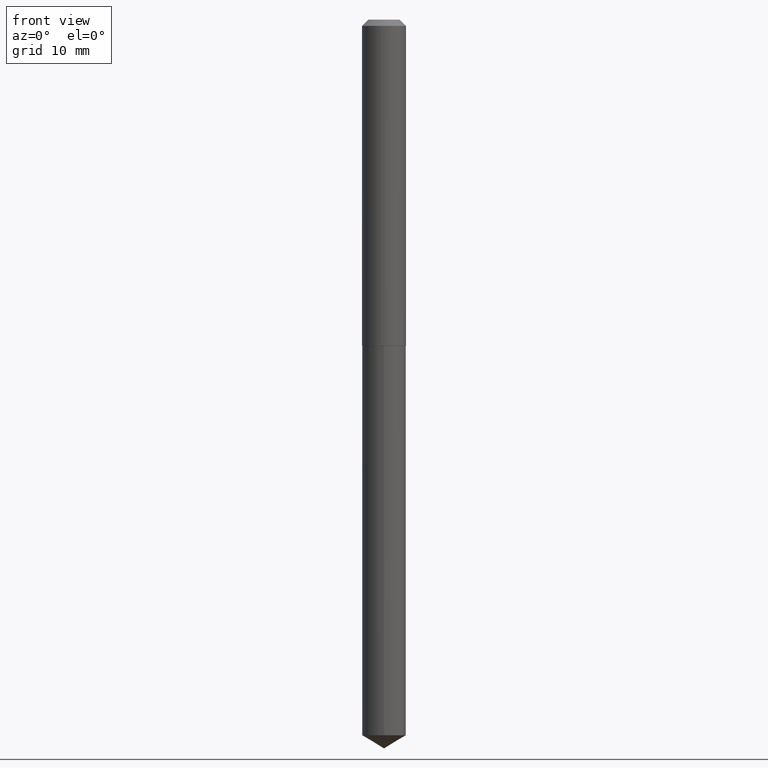
[diagram: clean part render]
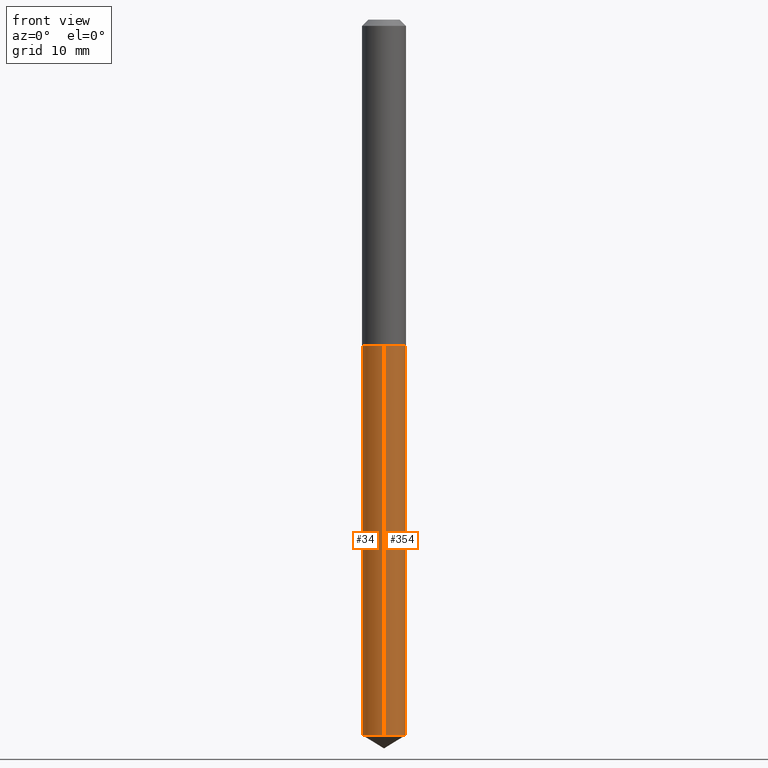
[diagram: same view with one multi-face feature highlighted, each face labeled with its STEP entity id]
A machine part, front view. The highlighted faces form ONE feature: a constant-radius fillet chain: 2 tangent blend faces with common blend radius 2.8003 mm. The faces share edges in the B-rep.
Their STEP definitions:
[1] entity #34 (Cylinder):
#13 = VERTEX_POINT ( 'NONE', #370 ) ;
#26 = EDGE_CURVE ( 'NONE', #13, #309, #104, .T. ) ;
#34 = ADVANCED_FACE ( 'NONE', ( #135 ), #237, .T. ) ;
#46 = AXIS2_PLACEMENT_3D ( 'NONE', #279, #364, #180 ) ;
#61 = CARTESIAN_POINT ( 'NONE',  ( 7.833733661755984184E-16, 0.1102499999999942693, -1.637800000000000145 ) ) ;
#63 = CARTESIAN_POINT ( 'NONE',  ( 7.833733661755981226E-16, 0.1102499999999874275, -3.595155116752211555 ) ) ;
#91 = DIRECTION ( 'NONE',  ( -2.445447831690350451E-29, 3.491511375513473073E-15, 1.000000000000000000 ) ) ;
#97 = DIRECTION ( 'NONE',  ( -6.982962677686266711E-15, -1.000000000000000000, 4.955733321839933614E-15 ) ) ;
#103 = CARTESIAN_POINT ( 'NONE',  ( 4.005188810770016634E-29, -5.718348136757303493E-15, -1.637799999999999923 ) ) ;
#104 = LINE ( 'NONE', #268, #221 ) ;
#133 = ORIENTED_EDGE ( 'NONE', *, *, #26, .T. ) ;
#135 = FACE_OUTER_BOUND ( 'NONE', #365, .T. ) ;
#156 = ORIENTED_EDGE ( 'NONE', *, *, #379, .F. ) ;
#162 = DIRECTION ( 'NONE',  ( -2.445447831690350451E-29, 3.491511375513473467E-15, 1.000000000000000000 ) ) ;
#180 = DIRECTION ( 'NONE',  ( -6.982962677686266711E-15, -1.000000000000000000, 2.477866660919966807E-15 ) ) ;
#197 = EDGE_CURVE ( 'NONE', #204, #330, #258, .T. ) ;
#204 = VERTEX_POINT ( 'NONE', #63 ) ;
#212 = ORIENTED_EDGE ( 'NONE', *, *, #197, .F. ) ;
#221 = VECTOR ( 'NONE', #91, 39.37007874015748143 ) ;
#229 = CARTESIAN_POINT ( 'NONE',  ( -7.698716352148708465E-16, -0.1102500000000057184, -1.637799999999999701 ) ) ;
#237 = CYLINDRICAL_SURFACE ( 'NONE', #46, 0.1102500000000000008 ) ;
#247 = CIRCLE ( 'NONE', #347, 0.1102500000000000008 ) ;
#253 = DIRECTION ( 'NONE',  ( -2.445447831690350451E-29, 3.491511375513473467E-15, 1.000000000000000000 ) ) ;
#258 = LINE ( 'NONE', #369, #300 ) ;
#261 = AXIS2_PLACEMENT_3D ( 'NONE', #344, #162, #97 ) ;
#268 = CARTESIAN_POINT ( 'NONE',  ( -7.698716352148708465E-16, -0.1102500000000057184, -1.637799999999999701 ) ) ;
#279 = CARTESIAN_POINT ( 'NONE',  ( 4.005188810770016634E-29, -5.718348136757303493E-15, -1.637799999999999923 ) ) ;
#300 = VECTOR ( 'NONE', #338, 39.37007874015748143 ) ;
#309 = VERTEX_POINT ( 'NONE', #229 ) ;
#322 = CIRCLE ( 'NONE', #261, 0.1102500000000000008 ) ;
#330 = VERTEX_POINT ( 'NONE', #61 ) ;
#338 = DIRECTION ( 'NONE',  ( -2.445447831690350451E-29, 3.491511375513473073E-15, 1.000000000000000000 ) ) ;
#339 = DIRECTION ( 'NONE',  ( -6.982962677686266711E-15, -1.000000000000000000, 2.477866660919966807E-15 ) ) ;
#344 = CARTESIAN_POINT ( 'NONE',  ( 8.791798636879723663E-29, -1.255247579281715321E-14, -3.595155116752211111 ) ) ;
#347 = AXIS2_PLACEMENT_3D ( 'NONE', #103, #253, #339 ) ;
#352 = EDGE_CURVE ( 'NONE', #204, #13, #322, .T. ) ;
#359 = ORIENTED_EDGE ( 'NONE', *, *, #352, .T. ) ;
#364 = DIRECTION ( 'NONE',  ( -2.445447831690350451E-29, 3.491511375513473467E-15, 1.000000000000000000 ) ) ;
#365 = EDGE_LOOP ( 'NONE', ( #212, #359, #133, #156 ) ) ;
#369 = CARTESIAN_POINT ( 'NONE',  ( 7.833733661755503965E-16, 0.1102499999999942831, -1.637800000000000145 ) ) ;
#370 = CARTESIAN_POINT ( 'NONE',  ( -7.698716352148227260E-16, -0.1102500000000125324, -3.595155116752210667 ) ) ;
#379 = EDGE_CURVE ( 'NONE', #330, #309, #247, .T. ) ;
[2] entity #354 (Cylinder):
#12 = DIRECTION ( 'NONE',  ( -2.445447831690350451E-29, 3.491511375513473467E-15, 1.000000000000000000 ) ) ;
#13 = VERTEX_POINT ( 'NONE', #370 ) ;
#26 = EDGE_CURVE ( 'NONE', #13, #309, #104, .T. ) ;
#40 = ORIENTED_EDGE ( 'NONE', *, *, #270, .T. ) ;
#51 = EDGE_LOOP ( 'NONE', ( #40, #158, #86, #239 ) ) ;
#61 = CARTESIAN_POINT ( 'NONE',  ( 7.833733661755984184E-16, 0.1102499999999942693, -1.637800000000000145 ) ) ;
#63 = CARTESIAN_POINT ( 'NONE',  ( 7.833733661755981226E-16, 0.1102499999999874275, -3.595155116752211555 ) ) ;
#65 = CIRCLE ( 'NONE', #94, 0.1102500000000000008 ) ;
#76 = DIRECTION ( 'NONE',  ( -2.445447831690350451E-29, 3.491511375513473467E-15, 1.000000000000000000 ) ) ;
#77 = DIRECTION ( 'NONE',  ( -6.982962677686266711E-15, -1.000000000000000000, 4.955733321839933614E-15 ) ) ;
#86 = ORIENTED_EDGE ( 'NONE', *, *, #192, .F. ) ;
#91 = DIRECTION ( 'NONE',  ( -2.445447831690350451E-29, 3.491511375513473073E-15, 1.000000000000000000 ) ) ;
#94 = AXIS2_PLACEMENT_3D ( 'NONE', #388, #285, #250 ) ;
#104 = LINE ( 'NONE', #268, #221 ) ;
#107 = CARTESIAN_POINT ( 'NONE',  ( 4.005188810770016634E-29, -5.718348136757303493E-15, -1.637799999999999923 ) ) ;
#158 = ORIENTED_EDGE ( 'NONE', *, *, #197, .T. ) ;
#169 = CYLINDRICAL_SURFACE ( 'NONE', #342, 0.1102500000000000008 ) ;
#186 = CIRCLE ( 'NONE', #230, 0.1102500000000000008 ) ;
#192 = EDGE_CURVE ( 'NONE', #309, #330, #65, .T. ) ;
#197 = EDGE_CURVE ( 'NONE', #204, #330, #258, .T. ) ;
#198 = FACE_OUTER_BOUND ( 'NONE', #51, .T. ) ;
#204 = VERTEX_POINT ( 'NONE', #63 ) ;
#221 = VECTOR ( 'NONE', #91, 39.37007874015748143 ) ;
#229 = CARTESIAN_POINT ( 'NONE',  ( -7.698716352148708465E-16, -0.1102500000000057184, -1.637799999999999701 ) ) ;
#230 = AXIS2_PLACEMENT_3D ( 'NONE', #349, #76, #77 ) ;
#239 = ORIENTED_EDGE ( 'NONE', *, *, #26, .F. ) ;
#250 = DIRECTION ( 'NONE',  ( -6.982962677686266711E-15, -1.000000000000000000, 2.477866660919966807E-15 ) ) ;
#258 = LINE ( 'NONE', #369, #300 ) ;
#268 = CARTESIAN_POINT ( 'NONE',  ( -7.698716352148708465E-16, -0.1102500000000057184, -1.637799999999999701 ) ) ;
#270 = EDGE_CURVE ( 'NONE', #13, #204, #186, .T. ) ;
#285 = DIRECTION ( 'NONE',  ( -2.445447831690350451E-29, 3.491511375513473467E-15, 1.000000000000000000 ) ) ;
#300 = VECTOR ( 'NONE', #338, 39.37007874015748143 ) ;
#309 = VERTEX_POINT ( 'NONE', #229 ) ;
#311 = DIRECTION ( 'NONE',  ( -6.982962677686266711E-15, -1.000000000000000000, 2.477866660919966807E-15 ) ) ;
#330 = VERTEX_POINT ( 'NONE', #61 ) ;
#338 = DIRECTION ( 'NONE',  ( -2.445447831690350451E-29, 3.491511375513473073E-15, 1.000000000000000000 ) ) ;
#342 = AXIS2_PLACEMENT_3D ( 'NONE', #107, #12, #311 ) ;
#349 = CARTESIAN_POINT ( 'NONE',  ( 8.791798636879723663E-29, -1.255247579281715321E-14, -3.595155116752211111 ) ) ;
#354 = ADVANCED_FACE ( 'NONE', ( #198 ), #169, .T. ) ;
#369 = CARTESIAN_POINT ( 'NONE',  ( 7.833733661755503965E-16, 0.1102499999999942831, -1.637800000000000145 ) ) ;
#370 = CARTESIAN_POINT ( 'NONE',  ( -7.698716352148227260E-16, -0.1102500000000125324, -3.595155116752210667 ) ) ;
#388 = CARTESIAN_POINT ( 'NONE',  ( 4.005188810770016634E-29, -5.718348136757303493E-15, -1.637799999999999923 ) ) ;